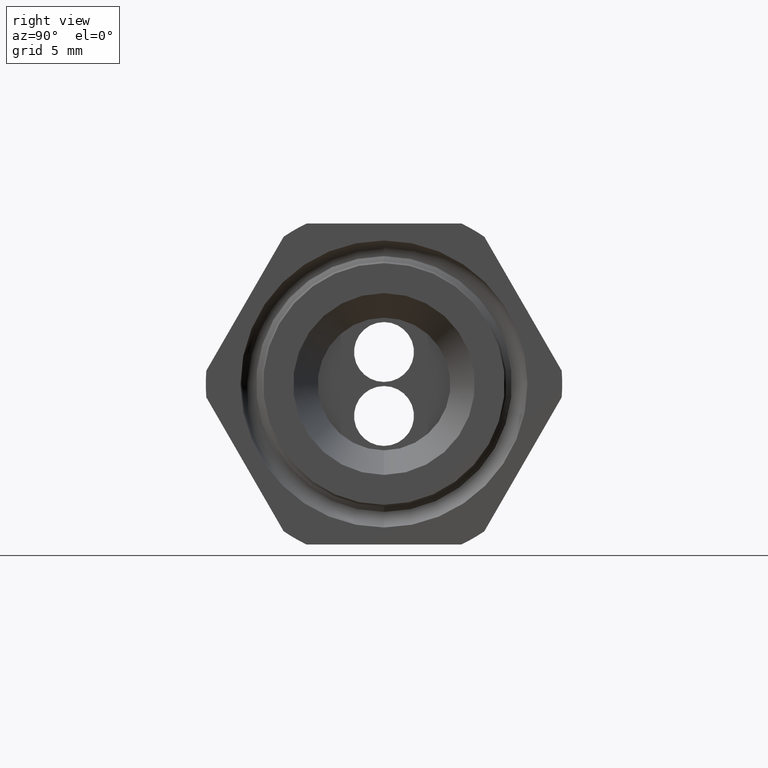
[diagram: clean part render]
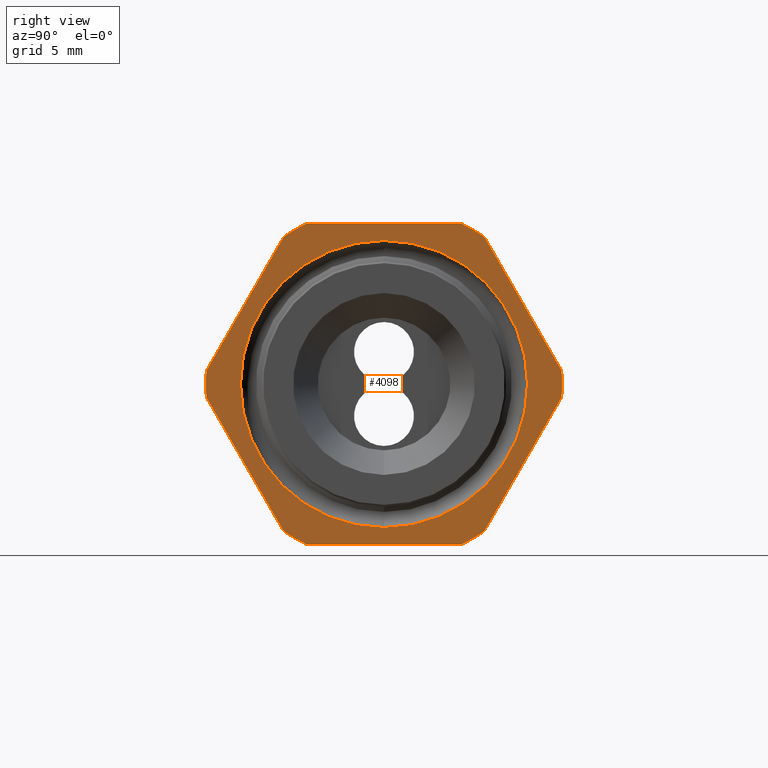
[diagram: same view with one face highlighted and labeled with its STEP entity id]
A machine part, right view. The second image highlights one B-rep face of the part: STEP entity #4098.
In plain terms, the highlighted planar face has unit normal (1, 0, 0).
Its self-contained STEP definition (entity closure, byte-faithful):
#1840 = LINE ( 'NONE', #1903, #1902 ) ;
#1841 = CARTESIAN_POINT ( 'NONE',  ( -0.3099999999999998300, 0.1806628420566886700, 0.3749999999999999400 ) ) ;
#1842 = DIRECTION ( 'NONE',  ( 0.0000000000000000000, 0.0000000000000000000, -1.000000000000000000 ) ) ;
#1843 = DIRECTION ( 'NONE',  ( 1.000000000000000000, 0.0000000000000000000, 0.0000000000000000000 ) ) ;
#1844 = CARTESIAN_POINT ( 'NONE',  ( -0.3100000000000000000, 0.0000000000000000000, 0.0000000000000000000 ) ) ;
#1845 = AXIS2_PLACEMENT_3D ( 'NONE', #1844, #1843, #1842 ) ;
#1846 = CIRCLE ( 'NONE', #1845, 0.4162499999999999500 ) ;
#1847 = CARTESIAN_POINT ( 'NONE',  ( -0.3099999999999998300, 0.2344281053908206000, 0.3439586107409877100 ) ) ;
#1848 = DIRECTION ( 'NONE',  ( 0.0000000000000000000, -0.5000000000000001100, 0.8660254037844384900 ) ) ;
#1849 = VECTOR ( 'NONE', #1848, 39.37007874015748900 ) ;
#1850 = CARTESIAN_POINT ( 'NONE',  ( -0.3100000000000000000, 0.5122595264191648300, -0.1372595264191644500 ) ) ;
#1851 = LINE ( 'NONE', #1850, #1849 ) ;
#1852 = DIRECTION ( 'NONE',  ( 0.0000000000000000000, 0.0000000000000000000, -1.000000000000000000 ) ) ;
#1853 = DIRECTION ( 'NONE',  ( 1.000000000000000000, 0.0000000000000000000, 0.0000000000000000000 ) ) ;
#1854 = CARTESIAN_POINT ( 'NONE',  ( -0.3100000000000000000, 0.0000000000000000000, 0.0000000000000000000 ) ) ;
#1855 = AXIS2_PLACEMENT_3D ( 'NONE', #1854, #1853, #1852 ) ;
#1856 = CIRCLE ( 'NONE', #1855, 0.4162500000000000100 ) ;
#1872 = LINE ( 'NONE', #1931, #1930 ) ;
#1873 = DIRECTION ( 'NONE',  ( 0.0000000000000000000, 0.0000000000000000000, -1.000000000000000000 ) ) ;
#1874 = DIRECTION ( 'NONE',  ( 1.000000000000000000, 0.0000000000000000000, 0.0000000000000000000 ) ) ;
#1875 = CARTESIAN_POINT ( 'NONE',  ( -0.3100000000000000000, 0.0000000000000000000, 0.0000000000000000000 ) ) ;
#1876 = AXIS2_PLACEMENT_3D ( 'NONE', #1875, #1874, #1873 ) ;
#1877 = CIRCLE ( 'NONE', #1876, 0.3352160785688592700 ) ;
#1878 = DIRECTION ( 'NONE',  ( 0.0000000000000000000, 0.0000000000000000000, -1.000000000000000000 ) ) ;
#1879 = DIRECTION ( 'NONE',  ( 1.000000000000000000, 0.0000000000000000000, 0.0000000000000000000 ) ) ;
#1880 = CARTESIAN_POINT ( 'NONE',  ( -0.3100000000000000000, 0.7500000000000001100, 0.0000000000000000000 ) ) ;
#1881 = AXIS2_PLACEMENT_3D ( 'NONE', #1880, #1879, #1878 ) ;
#1882 = PLANE ( 'NONE',  #1881 ) ;
#1883 = FACE_OUTER_BOUND ( 'NONE', #4103, .T. ) ;
#1884 = FACE_BOUND ( 'NONE', #4099, .T. ) ;
#1889 = CARTESIAN_POINT ( 'NONE',  ( -0.3099999999999998300, -0.4150909474475088500, 0.03104138925901205400 ) ) ;
#1890 = DIRECTION ( 'NONE',  ( 0.0000000000000000000, -0.4999999999999998900, -0.8660254037844386000 ) ) ;
#1891 = VECTOR ( 'NONE', #1890, 39.37007874015748100 ) ;
#1892 = CARTESIAN_POINT ( 'NONE',  ( -0.3100000000000000000, -0.1372595264191648300, 0.5122595264191646100 ) ) ;
#1893 = LINE ( 'NONE', #1892, #1891 ) ;
#1894 = CARTESIAN_POINT ( 'NONE',  ( -0.3099999999999998300, -0.2344281053908204800, 0.3439586107409878200 ) ) ;
#1895 = DIRECTION ( 'NONE',  ( 0.0000000000000000000, 0.0000000000000000000, -1.000000000000000000 ) ) ;
#1896 = DIRECTION ( 'NONE',  ( 1.000000000000000000, 0.0000000000000000000, 0.0000000000000000000 ) ) ;
#1897 = CARTESIAN_POINT ( 'NONE',  ( -0.3100000000000000000, 0.0000000000000000000, 0.0000000000000000000 ) ) ;
#1898 = AXIS2_PLACEMENT_3D ( 'NONE', #1897, #1896, #1895 ) ;
#1899 = CIRCLE ( 'NONE', #1898, 0.4162500000000000100 ) ;
#1900 = CARTESIAN_POINT ( 'NONE',  ( -0.3099999999999998300, -0.1806628420566886700, 0.3749999999999999400 ) ) ;
#1901 = DIRECTION ( 'NONE',  ( 0.0000000000000000000, -1.000000000000000000, 0.0000000000000000000 ) ) ;
#1902 = VECTOR ( 'NONE', #1901, 39.37007874015748100 ) ;
#1903 = CARTESIAN_POINT ( 'NONE',  ( -0.3100000000000000000, 0.7500000000000001100, 0.3749999999999999400 ) ) ;
#1921 = CARTESIAN_POINT ( 'NONE',  ( -0.3099999999999998300, 0.4150909474475088000, 0.03104138925901250200 ) ) ;
#1922 = DIRECTION ( 'NONE',  ( 0.0000000000000000000, 0.0000000000000000000, -1.000000000000000000 ) ) ;
#1923 = DIRECTION ( 'NONE',  ( 1.000000000000000000, 0.0000000000000000000, 0.0000000000000000000 ) ) ;
#1924 = CARTESIAN_POINT ( 'NONE',  ( -0.3100000000000000000, 0.0000000000000000000, 0.0000000000000000000 ) ) ;
#1925 = AXIS2_PLACEMENT_3D ( 'NONE', #1924, #1923, #1922 ) ;
#1926 = CIRCLE ( 'NONE', #1925, 0.4162500000000000100 ) ;
#1927 = CARTESIAN_POINT ( 'NONE',  ( -0.3100000000000000000, 0.4150909474475088000, -0.03104138925901225200 ) ) ;
#1928 = CARTESIAN_POINT ( 'NONE',  ( -0.3099999999999998300, 0.2344281053908205700, -0.3439586107409877700 ) ) ;
#1929 = DIRECTION ( 'NONE',  ( 0.0000000000000000000, 0.4999999999999998300, 0.8660254037844386000 ) ) ;
#1930 = VECTOR ( 'NONE', #1929, 39.37007874015748900 ) ;
#1931 = CARTESIAN_POINT ( 'NONE',  ( -0.3100000000000000000, 0.5122595264191646100, 0.1372595264191644500 ) ) ;
#1967 = DIRECTION ( 'NONE',  ( 0.0000000000000000000, 0.5000000000000002200, -0.8660254037844386000 ) ) ;
#1968 = VECTOR ( 'NONE', #1967, 39.37007874015747400 ) ;
#1969 = CARTESIAN_POINT ( 'NONE',  ( -0.3100000000000000000, -0.1372595264191645600, -0.5122595264191647200 ) ) ;
#1970 = LINE ( 'NONE', #1969, #1968 ) ;
#1971 = CARTESIAN_POINT ( 'NONE',  ( -0.3099999999999998300, -0.4150909474475088000, -0.03104138925901222700 ) ) ;
#1972 = DIRECTION ( 'NONE',  ( 0.0000000000000000000, 0.0000000000000000000, -1.000000000000000000 ) ) ;
#1973 = DIRECTION ( 'NONE',  ( 1.000000000000000000, 0.0000000000000000000, 0.0000000000000000000 ) ) ;
#1974 = CARTESIAN_POINT ( 'NONE',  ( -0.3100000000000000000, 0.0000000000000000000, 0.0000000000000000000 ) ) ;
#1975 = AXIS2_PLACEMENT_3D ( 'NONE', #1974, #1973, #1972 ) ;
#1976 = CIRCLE ( 'NONE', #1975, 0.4162500000000001200 ) ;
#2021 = CARTESIAN_POINT ( 'NONE',  ( -0.3099999999999998300, 0.1806628420566884800, -0.3750000000000001100 ) ) ;
#2022 = DIRECTION ( 'NONE',  ( 0.0000000000000000000, 1.000000000000000000, 0.0000000000000000000 ) ) ;
#2023 = VECTOR ( 'NONE', #2022, 39.37007874015748100 ) ;
#2024 = CARTESIAN_POINT ( 'NONE',  ( -0.3100000000000000000, 0.7500000000000001100, -0.3750000000000001100 ) ) ;
#2025 = LINE ( 'NONE', #2024, #2023 ) ;
#2026 = CARTESIAN_POINT ( 'NONE',  ( -0.3099999999999998300, -0.1806628420566884200, -0.3750000000000001100 ) ) ;
#2027 = DIRECTION ( 'NONE',  ( 0.0000000000000000000, 0.0000000000000000000, -1.000000000000000000 ) ) ;
#2028 = DIRECTION ( 'NONE',  ( 1.000000000000000000, 0.0000000000000000000, 0.0000000000000000000 ) ) ;
#2029 = CARTESIAN_POINT ( 'NONE',  ( -0.3100000000000000000, 0.0000000000000000000, 0.0000000000000000000 ) ) ;
#2030 = AXIS2_PLACEMENT_3D ( 'NONE', #2029, #2028, #2027 ) ;
#2031 = CIRCLE ( 'NONE', #2030, 0.4162500000000000100 ) ;
#2032 = CARTESIAN_POINT ( 'NONE',  ( -0.3099999999999998300, -0.2344281053908202100, -0.3439586107409880500 ) ) ;
#2748 = CARTESIAN_POINT ( 'NONE',  ( -0.3100000000000000000, 0.0000000000000000000, -0.3352160785688592700 ) ) ;
#2749 = DIRECTION ( 'NONE',  ( 0.0000000000000000000, 0.0000000000000000000, -1.000000000000000000 ) ) ;
#2750 = DIRECTION ( 'NONE',  ( 1.000000000000000000, 0.0000000000000000000, 0.0000000000000000000 ) ) ;
#2751 = CARTESIAN_POINT ( 'NONE',  ( -0.3100000000000000000, 0.0000000000000000000, 0.0000000000000000000 ) ) ;
#2752 = AXIS2_PLACEMENT_3D ( 'NONE', #2751, #2750, #2749 ) ;
#2753 = CIRCLE ( 'NONE', #2752, 0.3352160785688592700 ) ;
#2838 = CARTESIAN_POINT ( 'NONE',  ( -0.3100000000000000000, 4.105212976420811500E-017, 0.3352160785688592700 ) ) ;
#4078 = ORIENTED_EDGE ( 'NONE', *, *, #4079, .T. ) ;
#4079 = EDGE_CURVE ( 'NONE', #4158, #4106, #1856, .T. ) ;
#4081 = ORIENTED_EDGE ( 'NONE', *, *, #4082, .T. ) ;
#4082 = EDGE_CURVE ( 'NONE', #4110, #4083, #1851, .T. ) ;
#4083 = VERTEX_POINT ( 'NONE', #1847 ) ;
#4084 = ORIENTED_EDGE ( 'NONE', *, *, #4085, .T. ) ;
#4085 = EDGE_CURVE ( 'NONE', #4083, #4086, #1846, .T. ) ;
#4086 = VERTEX_POINT ( 'NONE', #1841 ) ;
#4087 = ORIENTED_EDGE ( 'NONE', *, *, #4088, .T. ) ;
#4088 = EDGE_CURVE ( 'NONE', #4086, #4089, #1840, .T. ) ;
#4089 = VERTEX_POINT ( 'NONE', #1900 ) ;
#4090 = ORIENTED_EDGE ( 'NONE', *, *, #4091, .T. ) ;
#4091 = EDGE_CURVE ( 'NONE', #4089, #4092, #1899, .T. ) ;
#4092 = VERTEX_POINT ( 'NONE', #1894 ) ;
#4093 = ORIENTED_EDGE ( 'NONE', *, *, #4094, .T. ) ;
#4094 = EDGE_CURVE ( 'NONE', #4092, #4095, #1893, .T. ) ;
#4095 = VERTEX_POINT ( 'NONE', #1889 ) ;
#4098 = ADVANCED_FACE ( 'NONE', ( #1884, #1883 ), #1882, .T. ) ;
#4099 = EDGE_LOOP ( 'NONE', ( #4100, #4102 ) ) ;
#4100 = ORIENTED_EDGE ( 'NONE', *, *, #4101, .F. ) ;
#4101 = EDGE_CURVE ( 'NONE', #4708, #4730, #1877, .T. ) ;
#4102 = ORIENTED_EDGE ( 'NONE', *, *, #4707, .F. ) ;
#4103 = EDGE_LOOP ( 'NONE', ( #4104, #4108, #4081, #4084, #4087, #4090, #4093, #4147, #4150, #4153, #4156, #4078 ) ) ;
#4104 = ORIENTED_EDGE ( 'NONE', *, *, #4105, .T. ) ;
#4105 = EDGE_CURVE ( 'NONE', #4106, #4107, #1872, .T. ) ;
#4106 = VERTEX_POINT ( 'NONE', #1928 ) ;
#4107 = VERTEX_POINT ( 'NONE', #1927 ) ;
#4108 = ORIENTED_EDGE ( 'NONE', *, *, #4109, .T. ) ;
#4109 = EDGE_CURVE ( 'NONE', #4107, #4110, #1926, .T. ) ;
#4110 = VERTEX_POINT ( 'NONE', #1921 ) ;
#4147 = ORIENTED_EDGE ( 'NONE', *, *, #4148, .T. ) ;
#4148 = EDGE_CURVE ( 'NONE', #4095, #4149, #1976, .T. ) ;
#4149 = VERTEX_POINT ( 'NONE', #1971 ) ;
#4150 = ORIENTED_EDGE ( 'NONE', *, *, #4151, .T. ) ;
#4151 = EDGE_CURVE ( 'NONE', #4149, #4152, #1970, .T. ) ;
#4152 = VERTEX_POINT ( 'NONE', #2032 ) ;
#4153 = ORIENTED_EDGE ( 'NONE', *, *, #4154, .T. ) ;
#4154 = EDGE_CURVE ( 'NONE', #4152, #4155, #2031, .T. ) ;
#4155 = VERTEX_POINT ( 'NONE', #2026 ) ;
#4156 = ORIENTED_EDGE ( 'NONE', *, *, #4157, .T. ) ;
#4157 = EDGE_CURVE ( 'NONE', #4155, #4158, #2025, .T. ) ;
#4158 = VERTEX_POINT ( 'NONE', #2021 ) ;
#4707 = EDGE_CURVE ( 'NONE', #4730, #4708, #2753, .T. ) ;
#4708 = VERTEX_POINT ( 'NONE', #2748 ) ;
#4730 = VERTEX_POINT ( 'NONE', #2838 ) ;